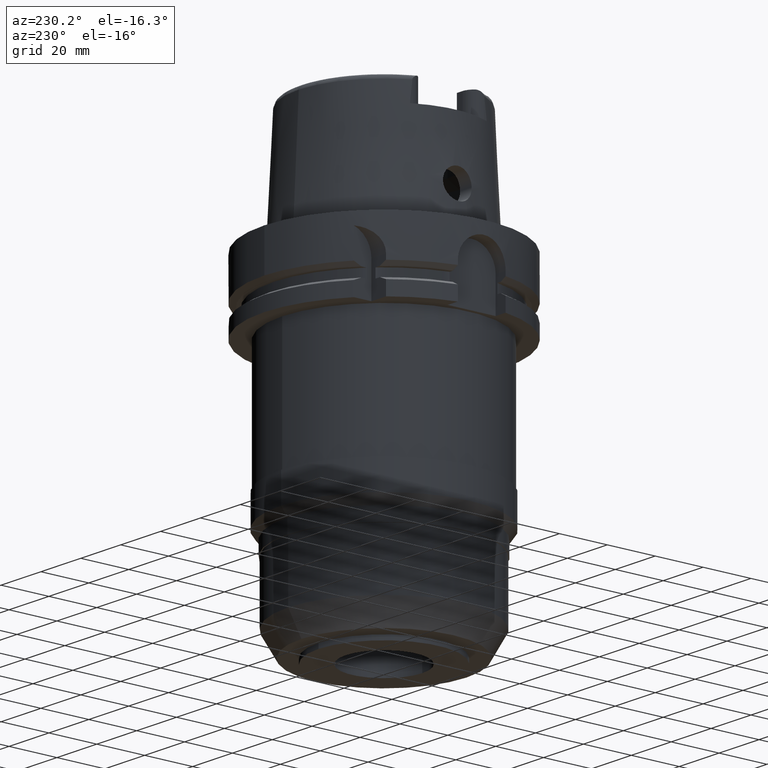
[diagram: clean part render]
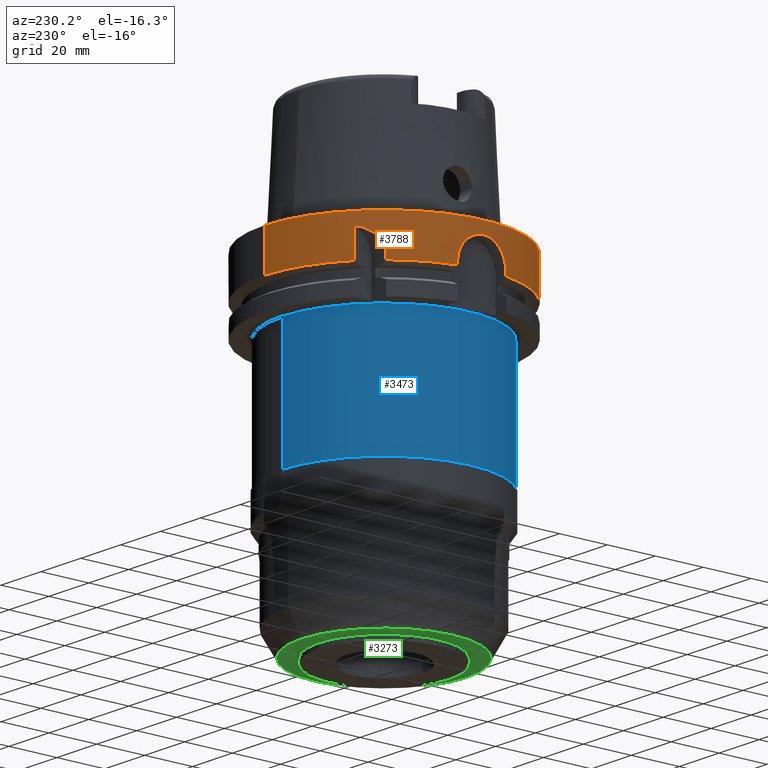
[diagram: same view with three faces highlighted in distinct colors, each labeled with its STEP entity id]
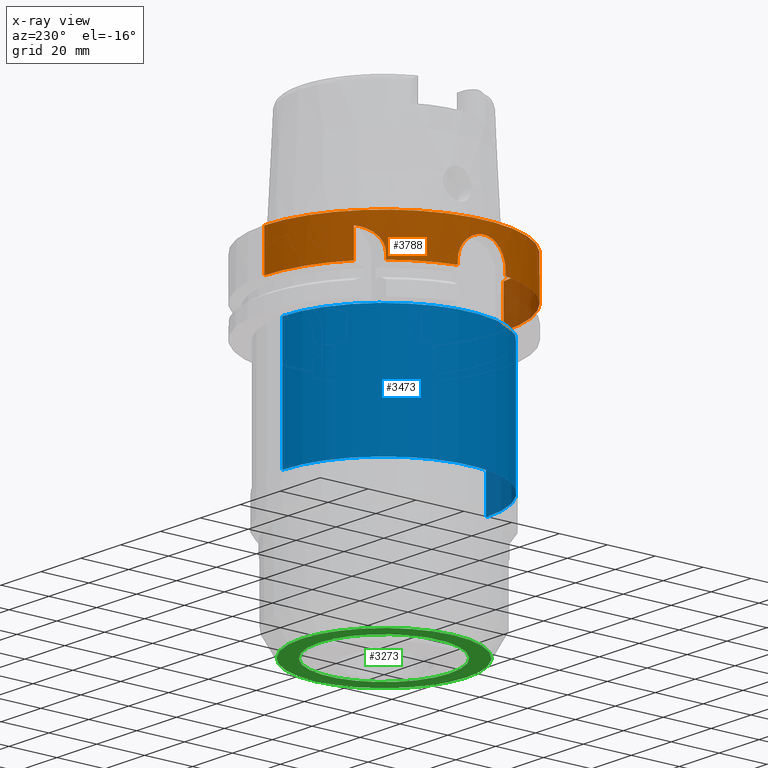
[diagram: x-ray of the same camera — body ghosted, the three highlighted faces saturated]
A machine part, auxiliary view with three faces highlighted in distinct colors.
The next image is the same camera in x-ray (body ghosted, the three faces saturated) — at least one of them is partly hidden behind the body in this view.
Their STEP definitions:

[orange] entity #3788 — the highlighted cylindrical surface (partial cylindrical patch) has radius 50 mm, axis along (0, 0, 1).
#1276=CARTESIAN_POINT('',(-3.150000355959E1,3.882975374305E1,
-1.675239179145E1));
#1461=CARTESIAN_POINT('',(-3.882975730068E1,3.149999917413E1,
-1.675240773890E1));
#1485=DIRECTION('',(-3.028824622550E-7,-2.457086204960E-7,-9.999999999999E-1));
#1486=VECTOR('',#1485,1.175239179144E1);
#1487=CARTESIAN_POINT('',(-3.15E1,3.882975663071E1,-5.000000000003E0));
#1488=LINE('',#1487,#1486);
#1492=DIRECTION('',(0.E0,2.969006079282E-14,-1.E0));
#1493=VECTOR('',#1492,1.675240473581E1);
#1494=CARTESIAN_POINT('',(0.E0,-5.E1,2.463214817302E-13));
#1495=LINE('',#1494,#1493);
#1499=DIRECTION('',(3.933032361779E-13,-2.534170336198E-14,1.E0));
#1500=VECTOR('',#1499,1.752404735809E0);
#1501=CARTESIAN_POINT('',(-4.898979485566E1,-1.E1,-1.675240473581E1));
#1502=LINE('',#1501,#1500);
#1506=DIRECTION('',(-4.014125812538E-13,-2.635537149646E-14,-1.E0));
#1507=VECTOR('',#1506,1.752404735809E0);
#1508=CARTESIAN_POINT('',(-4.898979485566E1,1.E1,-1.5E1));
#1509=LINE('',#1508,#1507);
#1513=DIRECTION('',(3.166955095345E-7,3.903884141555E-7,9.999999999999E-1));
#1514=VECTOR('',#1513,2.115509879686E0);
#1515=CARTESIAN_POINT('',(-3.882975730068E1,3.149999917413E1,
-1.675240773890E1));
#1516=LINE('',#1515,#1514);
#1520=CARTESIAN_POINT('',(-3.882975663071E1,3.15E1,-1.463689785921E1));
#1521=CARTESIAN_POINT('',(-3.882975663071E1,3.15E1,-1.433064616803E1));
#1522=CARTESIAN_POINT('',(-3.880705422976E1,3.152801625389E1,
-1.372017333441E1));
#1523=CARTESIAN_POINT('',(-3.870428885498E1,3.165427416487E1,
-1.280789796632E1));
#1524=CARTESIAN_POINT('',(-3.853135160626E1,3.186487466080E1,
-1.190702947007E1));
#1525=CARTESIAN_POINT('',(-3.828481064571E1,3.216112139059E1,
-1.102040384079E1));
#1526=CARTESIAN_POINT('',(-3.796154875255E1,3.254265071697E1,
-1.015735258719E1));
#1527=CARTESIAN_POINT('',(-3.755549775618E1,3.301119515243E1,
-9.321662301873E0));
#1528=CARTESIAN_POINT('',(-3.705885492166E1,3.356872838146E1,
-8.519828888380E0));
#1529=CARTESIAN_POINT('',(-3.646394592804E1,3.421519580382E1,
-7.761523281615E0));
#1530=CARTESIAN_POINT('',(-3.575809827878E1,3.495362824472E1,
-7.053893448163E0));
#1531=CARTESIAN_POINT('',(-3.493062109823E1,3.578229936867E1,
-6.409707493797E0));
#1532=CARTESIAN_POINT('',(-3.396221594085E1,3.670477659820E1,
-5.838585168142E0));
#1533=CARTESIAN_POINT('',(-3.283745498365E1,3.771686812440E1,
-5.356688261276E0));
#1534=CARTESIAN_POINT('',(-3.196702760883E1,3.845088818150E1,
-5.104978902875E0));
#1535=CARTESIAN_POINT('',(-3.15E1,3.882975663071E1,-5.000000000003E0));
#1558=CARTESIAN_POINT('',(0.E0,0.E0,-1.675240473581E1));
#1559=DIRECTION('',(0.E0,0.E0,1.E0));
#1560=DIRECTION('',(0.E0,1.E0,0.E0));
#1561=AXIS2_PLACEMENT_3D('',#1558,#1559,#1560);
#1715=DIRECTION('',(0.E0,-2.969006079282E-14,-1.E0));
#1716=VECTOR('',#1715,1.675240473581E1);
#1717=CARTESIAN_POINT('',(0.E0,5.E1,2.463214817302E-13));
#1718=LINE('',#1717,#1716);
#1789=CARTESIAN_POINT('',(0.E0,0.E0,-1.675240473581E1));
#1790=DIRECTION('',(0.E0,0.E0,1.E0));
#1791=DIRECTION('',(-9.797958971133E-1,-2.E-1,0.E0));
#1792=AXIS2_PLACEMENT_3D('',#1789,#1790,#1791);
#1943=CARTESIAN_POINT('',(0.E0,0.E0,3.979039320257E-13));
#1944=DIRECTION('',(0.E0,0.E0,-1.E0));
#1945=DIRECTION('',(0.E0,-1.E0,0.E0));
#1946=AXIS2_PLACEMENT_3D('',#1943,#1944,#1945);
#1975=CARTESIAN_POINT('',(-4.898979485566E1,1.E1,-1.5E1));
#1976=CARTESIAN_POINT('',(-4.898979485566E1,1.E1,-1.426108339054E1));
#1977=CARTESIAN_POINT('',(-4.902380397178E1,9.835573181094E0,
-1.277773796763E1));
#1978=CARTESIAN_POINT('',(-4.916882506048E1,9.096390976148E0,
-1.064602762518E1));
#1979=CARTESIAN_POINT('',(-4.938004913442E1,7.892536922877E0,
-8.720777334135E0));
#1980=CARTESIAN_POINT('',(-4.961472990510E1,6.281193322608E0,
-7.108977901554E0));
#1981=CARTESIAN_POINT('',(-4.982397989539E1,4.355986646179E0,
-5.904662998031E0));
#1982=CARTESIAN_POINT('',(-4.996651786456E1,2.226278022806E0,
-5.165424488103E0));
#1983=CARTESIAN_POINT('',(-5.001677347920E1,-1.478587462516E-3,
-4.917124513237E0));
#1984=CARTESIAN_POINT('',(-4.996638810610E1,-2.229127438261E0,
-5.166078098978E0));
#1985=CARTESIAN_POINT('',(-4.982375143674E1,-4.358568224987E0,
-5.905888858995E0));
#1986=CARTESIAN_POINT('',(-4.961443094386E1,-6.283534592861E0,
-7.110860296475E0));
#1987=CARTESIAN_POINT('',(-4.937976574419E1,-7.894254858082E0,
-8.722905111690E0));
#1988=CARTESIAN_POINT('',(-4.916856876748E1,-9.097827969051E0,
-1.064902048529E1));
#1989=CARTESIAN_POINT('',(-4.902370122882E1,-9.835971298666E0,
-1.278006468368E1));
#1990=CARTESIAN_POINT('',(-4.898979485566E1,-1.E1,-1.426200339765E1));
#1991=CARTESIAN_POINT('',(-4.898979485566E1,-1.E1,-1.5E1));
#2010=CARTESIAN_POINT('',(0.E0,0.E0,-1.675240473581E1));
#2011=DIRECTION('',(0.E0,0.E0,1.E0));
#2012=DIRECTION('',(-7.765951326142E-1,6.3E-1,0.E0));
#2013=AXIS2_PLACEMENT_3D('',#2010,#2011,#2012);
#2018=CARTESIAN_POINT('',(-4.898979485566E1,1.E1,-1.675240473581E1));
#2486=VERTEX_POINT('',#1276);
#2487=CARTESIAN_POINT('',(-3.15E1,3.882975663071E1,-5.000000000003E0));
#2488=VERTEX_POINT('',#2487);
#2507=CARTESIAN_POINT('',(-4.898979485566E1,-1.E1,-1.5E1));
#2508=VERTEX_POINT('',#2507);
#2509=CARTESIAN_POINT('',(-4.898979485566E1,-1.E1,-1.675240473581E1));
#2510=VERTEX_POINT('',#2509);
#2529=VERTEX_POINT('',#2018);
#2530=CARTESIAN_POINT('',(-4.898979485566E1,1.E1,-1.5E1));
#2531=VERTEX_POINT('',#2530);
#2570=CARTESIAN_POINT('',(0.E0,-5.E1,-1.675240473581E1));
#2571=VERTEX_POINT('',#2570);
#2575=CARTESIAN_POINT('',(0.E0,5.E1,-1.675240473581E1));
#2576=VERTEX_POINT('',#2575);
#2577=VERTEX_POINT('',#1461);
#2578=CARTESIAN_POINT('',(0.E0,5.E1,2.463214817302E-13));
#2579=VERTEX_POINT('',#2578);
#2580=CARTESIAN_POINT('',(0.E0,-5.E1,3.979039320257E-13));
#2581=VERTEX_POINT('',#2580);
#2582=CARTESIAN_POINT('',(-3.882975663071E1,3.15E1,-1.463689785921E1));
#2583=VERTEX_POINT('',#2582);
#3762=CARTESIAN_POINT('',(0.E0,0.E0,-1.4677E2));
#3763=DIRECTION('',(0.E0,0.E0,1.E0));
#3764=DIRECTION('',(0.E0,1.E0,0.E0));
#3765=AXIS2_PLACEMENT_3D('',#3762,#3763,#3764);
#3766=CYLINDRICAL_SURFACE('',#3765,5.E1);
#3767=ORIENTED_EDGE('',*,*,#3530,.T.);
#3769=ORIENTED_EDGE('',*,*,#3768,.F.);
#3771=ORIENTED_EDGE('',*,*,#3770,.F.);
#3773=ORIENTED_EDGE('',*,*,#3772,.F.);
#3775=ORIENTED_EDGE('',*,*,#3774,.T.);
#3777=ORIENTED_EDGE('',*,*,#3776,.F.);
#3778=ORIENTED_EDGE('',*,*,#3653,.T.);
#3780=ORIENTED_EDGE('',*,*,#3779,.F.);
#3781=ORIENTED_EDGE('',*,*,#3703,.T.);
#3783=ORIENTED_EDGE('',*,*,#3782,.F.);
#3784=ORIENTED_EDGE('',*,*,#3734,.T.);
#3785=ORIENTED_EDGE('',*,*,#3755,.T.);
#3786=EDGE_LOOP('',(#3767,#3769,#3771,#3773,#3775,#3777,#3778,#3780,#3781,#3783,
#3784,#3785));
#3787=FACE_OUTER_BOUND('',#3786,.F.);
#1536=B_SPLINE_CURVE_WITH_KNOTS('',3,(#1520,#1521,#1522,#1523,#1524,#1525,#1526,
#1527,#1528,#1529,#1530,#1531,#1532,#1533,#1534,#1535),.UNSPECIFIED.,.F.,.F.,(4,
1,1,1,1,1,1,1,1,1,1,1,1,4),(0.E0,7.692307692308E-2,1.538461538462E-1,
2.307692307692E-1,3.076923076923E-1,3.846153846154E-1,4.615384615385E-1,
5.384615384615E-1,6.153846153846E-1,6.923076923077E-1,7.692307692308E-1,
8.461538461538E-1,9.230769230769E-1,1.E0),.UNSPECIFIED.);
#1562=CIRCLE('',#1561,5.E1);
#1793=CIRCLE('',#1792,5.E1);
#1947=CIRCLE('',#1946,5.E1);
#1992=B_SPLINE_CURVE_WITH_KNOTS('',3,(#1975,#1976,#1977,#1978,#1979,#1980,#1981,
#1982,#1983,#1984,#1985,#1986,#1987,#1988,#1989,#1990,#1991),.UNSPECIFIED.,.F.,
.F.,(4,1,1,1,1,1,1,1,1,1,1,1,1,1,4),(0.E0,7.142857142857E-2,1.428571428571E-1,
2.142857142857E-1,2.857142857143E-1,3.571428571429E-1,4.285714285714E-1,5.E-1,
5.714285714286E-1,6.428571428571E-1,7.142857142857E-1,7.857142857143E-1,
8.571428571429E-1,9.285714285714E-1,1.E0),.UNSPECIFIED.);
#2014=CIRCLE('',#2013,5.E1);
#3530=EDGE_CURVE('',#2488,#2486,#1488,.T.);
#3653=EDGE_CURVE('',#2510,#2508,#1502,.T.);
#3703=EDGE_CURVE('',#2531,#2529,#1509,.T.);
#3734=EDGE_CURVE('',#2577,#2583,#1516,.T.);
#3755=EDGE_CURVE('',#2583,#2488,#1536,.T.);
#3768=EDGE_CURVE('',#2576,#2486,#1562,.T.);
#3770=EDGE_CURVE('',#2579,#2576,#1718,.T.);
#3772=EDGE_CURVE('',#2581,#2579,#1947,.T.);
#3774=EDGE_CURVE('',#2581,#2571,#1495,.T.);
#3776=EDGE_CURVE('',#2510,#2571,#1793,.T.);
#3779=EDGE_CURVE('',#2531,#2508,#1992,.T.);
#3782=EDGE_CURVE('',#2577,#2529,#2014,.T.);
#3788=ADVANCED_FACE('',(#3787),#3766,.T.);

[blue] entity #3473 — the highlighted cylindrical surface (partial cylindrical patch) has radius 42.5 mm, axis along (0, 0, 1).
#1158=CARTESIAN_POINT('',(0.E0,0.E0,-8.04E1));
#1159=DIRECTION('',(0.E0,0.E0,1.E0));
#1160=DIRECTION('',(0.E0,1.E0,0.E0));
#1161=AXIS2_PLACEMENT_3D('',#1158,#1159,#1160);
#1166=DIRECTION('',(0.E0,0.E0,-1.E0));
#1167=VECTOR('',#1166,5.14E1);
#1168=CARTESIAN_POINT('',(0.E0,4.25E1,-2.9E1));
#1169=LINE('',#1168,#1167);
#1173=DIRECTION('',(0.E0,0.E0,-1.E0));
#1174=VECTOR('',#1173,5.14E1);
#1175=CARTESIAN_POINT('',(0.E0,-4.25E1,-2.9E1));
#1176=LINE('',#1175,#1174);
#1241=CARTESIAN_POINT('',(0.E0,0.E0,-2.9E1));
#1242=DIRECTION('',(0.E0,0.E0,-1.E0));
#1243=DIRECTION('',(0.E0,-1.E0,0.E0));
#1244=AXIS2_PLACEMENT_3D('',#1241,#1242,#1243);
#2443=CARTESIAN_POINT('',(0.E0,-4.25E1,-8.04E1));
#2444=CARTESIAN_POINT('',(0.E0,4.25E1,-8.04E1));
#2445=VERTEX_POINT('',#2443);
#2446=VERTEX_POINT('',#2444);
#2447=CARTESIAN_POINT('',(0.E0,4.25E1,-2.9E1));
#2448=VERTEX_POINT('',#2447);
#2449=CARTESIAN_POINT('',(0.E0,-4.25E1,-2.9E1));
#2450=VERTEX_POINT('',#2449);
#3461=CARTESIAN_POINT('',(0.E0,0.E0,-1.4677E2));
#3462=DIRECTION('',(0.E0,0.E0,1.E0));
#3463=DIRECTION('',(0.E0,1.E0,0.E0));
#3464=AXIS2_PLACEMENT_3D('',#3461,#3462,#3463);
#3465=CYLINDRICAL_SURFACE('',#3464,4.25E1);
#3466=ORIENTED_EDGE('',*,*,#3451,.F.);
#3468=ORIENTED_EDGE('',*,*,#3467,.F.);
#3469=ORIENTED_EDGE('',*,*,#3454,.T.);
#3470=ORIENTED_EDGE('',*,*,#3441,.F.);
#3471=EDGE_LOOP('',(#3466,#3468,#3469,#3470));
#3472=FACE_OUTER_BOUND('',#3471,.F.);
#1162=CIRCLE('',#1161,4.25E1);
#1245=CIRCLE('',#1244,4.25E1);
#3441=EDGE_CURVE('',#2446,#2445,#1162,.T.);
#3451=EDGE_CURVE('',#2448,#2446,#1169,.T.);
#3454=EDGE_CURVE('',#2450,#2445,#1176,.T.);
#3467=EDGE_CURVE('',#2450,#2448,#1245,.T.);
#3473=ADVANCED_FACE('',(#3472),#3465,.T.);

[green] entity #3273 — the highlighted planar face has unit normal (0, 0, 1).
#952=CARTESIAN_POINT('',(0.E0,0.E0,-1.354E2));
#953=DIRECTION('',(0.E0,0.E0,1.E0));
#954=DIRECTION('',(0.E0,-1.E0,0.E0));
#955=AXIS2_PLACEMENT_3D('',#952,#953,#954);
#960=CARTESIAN_POINT('',(0.E0,0.E0,-1.354E2));
#961=DIRECTION('',(0.E0,0.E0,1.E0));
#962=DIRECTION('',(0.E0,1.E0,0.E0));
#963=AXIS2_PLACEMENT_3D('',#960,#961,#962);
#968=CARTESIAN_POINT('',(0.E0,0.E0,-1.354E2));
#969=DIRECTION('',(0.E0,0.E0,-1.E0));
#970=DIRECTION('',(0.E0,-1.E0,0.E0));
#971=AXIS2_PLACEMENT_3D('',#968,#969,#970);
#976=CARTESIAN_POINT('',(0.E0,0.E0,-1.354E2));
#977=DIRECTION('',(0.E0,0.E0,-1.E0));
#978=DIRECTION('',(0.E0,1.E0,0.E0));
#979=AXIS2_PLACEMENT_3D('',#976,#977,#978);
#2411=CARTESIAN_POINT('',(0.E0,2.735E1,-1.354E2));
#2412=VERTEX_POINT('',#2411);
#2413=CARTESIAN_POINT('',(0.E0,-2.735E1,-1.354E2));
#2414=VERTEX_POINT('',#2413);
#2415=CARTESIAN_POINT('',(0.E0,-3.451517244270E1,-1.354E2));
#2416=CARTESIAN_POINT('',(0.E0,3.451517244270E1,-1.354E2));
#2417=VERTEX_POINT('',#2415);
#2418=VERTEX_POINT('',#2416);
#3258=CARTESIAN_POINT('',(0.E0,0.E0,-1.354E2));
#3259=DIRECTION('',(0.E0,0.E0,1.E0));
#3260=DIRECTION('',(0.E0,1.E0,0.E0));
#3261=AXIS2_PLACEMENT_3D('',#3258,#3259,#3260);
#3262=PLANE('',#3261);
#3264=ORIENTED_EDGE('',*,*,#3263,.T.);
#3266=ORIENTED_EDGE('',*,*,#3265,.T.);
#3267=EDGE_LOOP('',(#3264,#3266));
#3268=FACE_OUTER_BOUND('',#3267,.F.);
#3269=ORIENTED_EDGE('',*,*,#3251,.T.);
#3270=ORIENTED_EDGE('',*,*,#3240,.T.);
#3271=EDGE_LOOP('',(#3269,#3270));
#3272=FACE_BOUND('',#3271,.F.);
#956=CIRCLE('',#955,3.451517244270E1);
#964=CIRCLE('',#963,3.451517244270E1);
#972=CIRCLE('',#971,2.735E1);
#980=CIRCLE('',#979,2.735E1);
#3240=EDGE_CURVE('',#2412,#2414,#980,.T.);
#3251=EDGE_CURVE('',#2414,#2412,#972,.T.);
#3263=EDGE_CURVE('',#2417,#2418,#956,.T.);
#3265=EDGE_CURVE('',#2418,#2417,#964,.T.);
#3273=ADVANCED_FACE('',(#3268,#3272),#3262,.F.);